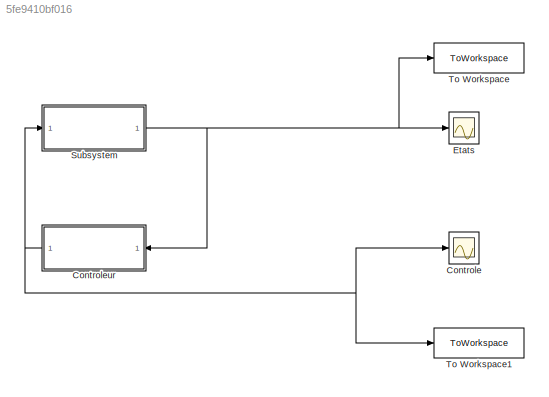
MODEL slx_5fe9410bf016
KIND model
CONFIG AbsTol = auto
CONFIG EnableMultiTasking = off
CONFIG FixedStep = auto
CONFIG MaxStep = auto
CONFIG MinStep = auto
CONFIG RelTol = 1e-3
CONFIG SampleTimeConstraint = Unconstrained
CONFIG SolverName = VariableStepAuto
CONFIG StartTime = 0.0
CONFIG StopTime = 10.0
BLOCK [Scope] Controle
  Floating = off
  NumInputPorts = 1
  Ports = [1]
  ScopeSpecificationString = Simulink.scopes.TimeScopeBlockCfg('CurrentConfiguration', extmgr.ConfigurationSet(extmgr.Configuration('Core','General UI',true),extmgr.Configuration('Core','Source UI',true),extmgr.Configuration('Sources','WiredSimulink',true,'DataLoggingVariableName','ScopeData1'),extmgr.Configuration('Visuals','Time Domain',true),extmgr.Configuration('Tools','Plot Navigation',true),extmgr.Configuration('Tools',...<+40ch>
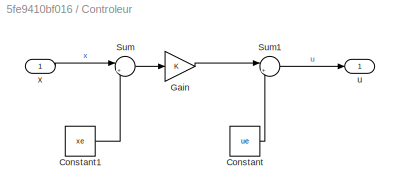
BLOCK [SubSystem] Controleur
  Ports = [1, 1]
  RequestExecContextInheritance = off
BLOCK [Constant] Controleur/Constant
  Value = ue
BLOCK [Constant] Controleur/Constant1
  Value = xe
BLOCK [Gain] Controleur/Gain
  Gain = K
  Multiplication = Matrix(K*u)
BLOCK [Sum] Controleur/Sum
  Inputs = |+-
  Ports = [2, 1]
BLOCK [Sum] Controleur/Sum1
  Inputs = |++
  Ports = [2, 1]
BLOCK [Outport] Controleur/u
  IconDisplay = Signal name
BLOCK [Inport] Controleur/x
  IconDisplay = Signal name
BLOCK [Scope] Etats
  Floating = off
  NumInputPorts = 1
  Ports = [1]
  ScopeSpecificationString = Simulink.scopes.TimeScopeBlockCfg('CurrentConfiguration', extmgr.ConfigurationSet(extmgr.Configuration('Core','General UI',true),extmgr.Configuration('Core','Source UI',true),extmgr.Configuration('Sources','WiredSimulink',true),extmgr.Configuration('Visuals','Time Domain',true),extmgr.Configuration('Tools','Plot Navigation',true),extmgr.Configuration('Tools','Measurements',true,'Version','2021a'))...<+19ch>
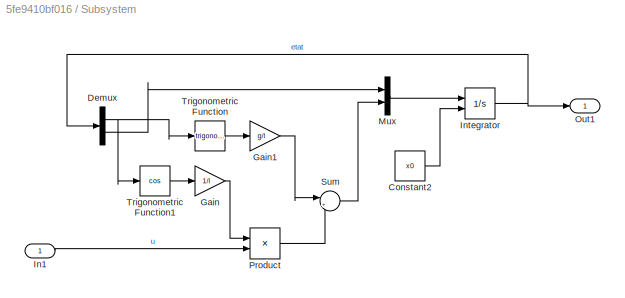
BLOCK [SubSystem] Subsystem
  Ports = [1, 1]
  RequestExecContextInheritance = off
BLOCK [Constant] Subsystem/Constant2
  Value = x0
BLOCK [Demux] Subsystem/Demux
  Outputs = 2
  Ports = [1, 2]
BLOCK [Gain] Subsystem/Gain
  Gain = 1/l
BLOCK [Gain] Subsystem/Gain1
  Gain = g/l
BLOCK [Inport] Subsystem/In1
  IconDisplay = Signal name
BLOCK [Integrator] Subsystem/Integrator
  InitialConditionSource = external
  Ports = [2, 1]
BLOCK [Mux] Subsystem/Mux
  DisplayOption = bar
  Inputs = 2
  Ports = [2, 1]
BLOCK [Outport] Subsystem/Out1
  IconDisplay = Signal name
BLOCK [Product] Subsystem/Product
  Ports = [2, 1]
BLOCK [Sum] Subsystem/Sum
  Inputs = |+-
  Ports = [2, 1]
BLOCK [Trigonometry] Subsystem/Trigonometric Function
  Ports = [1, 1]
BLOCK [Trigonometry] Subsystem/Trigonometric Function1
  Operator = cos
  Ports = [1, 1]
BLOCK [ToWorkspace] To Workspace
  FixptAsFi = on
  MaxDataPoints = inf
  Ports = [1]
  SampleTime = -1
  SaveFormat = Timeseries
  VariableName = X
BLOCK [ToWorkspace] To Workspace1
  FixptAsFi = on
  MaxDataPoints = inf
  Ports = [1]
  SampleTime = -1
  SaveFormat = Timeseries
  VariableName = U
LINE Controleur/Constant1:1 -> Controleur/Sum:2
LINE Controleur/Constant:1 -> Controleur/Sum1:2
LINE Controleur/Gain:1 -> Controleur/Sum1:1
LINE Controleur/Sum1:1 -> Controleur/u:1
LINE Controleur/Sum:1 -> Controleur/Gain:1
LINE Controleur/x:1 -> Controleur/Sum:1
NET Controleur:1 -> Controle:1, Subsystem:1, To Workspace1:1
LINE Subsystem/Constant2:1 -> Subsystem/Integrator:2
NET Subsystem/Demux:1 -> Subsystem/Trigonometric Function1:1, Subsystem/Trigonometric Function:1
LINE Subsystem/Demux:2 -> Subsystem/Mux:1
LINE Subsystem/Gain1:1 -> Subsystem/Sum:1
LINE Subsystem/Gain:1 -> Subsystem/Product:1
LINE Subsystem/In1:1 -> Subsystem/Product:2
NET Subsystem/Integrator:1 -> Subsystem/Demux:1, Subsystem/Out1:1
LINE Subsystem/Mux:1 -> Subsystem/Integrator:1
LINE Subsystem/Product:1 -> Subsystem/Sum:2
LINE Subsystem/Sum:1 -> Subsystem/Mux:2
LINE Subsystem/Trigonometric Function1:1 -> Subsystem/Gain:1
LINE Subsystem/Trigonometric Function:1 -> Subsystem/Gain1:1
NET Subsystem:1 -> Controleur:1, Etats:1, To Workspace:1
note: NET lines group one-source signal fan-out (src -> all destinations, sorted); 1:1 wires keep LINE
